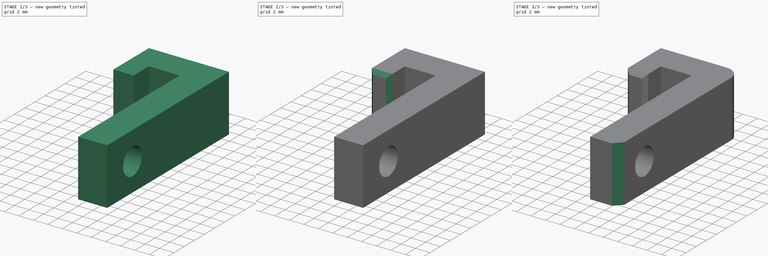
[diagram: build sequence overview — one tinted view per stage of 3, left to right]
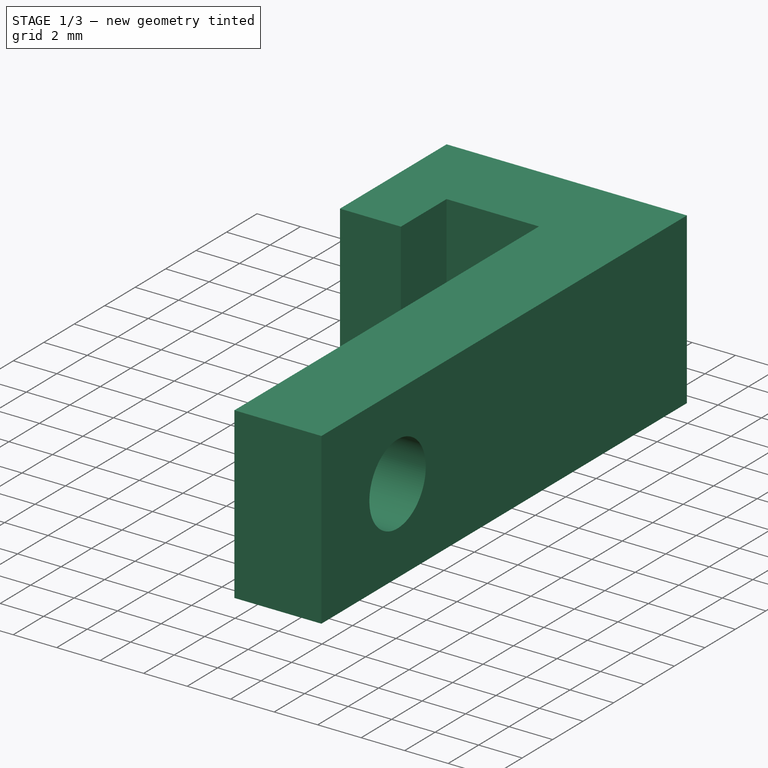
[diagram: stage 1 of 3 — iso view after this stage's code; geometry added in this stage tinted green]
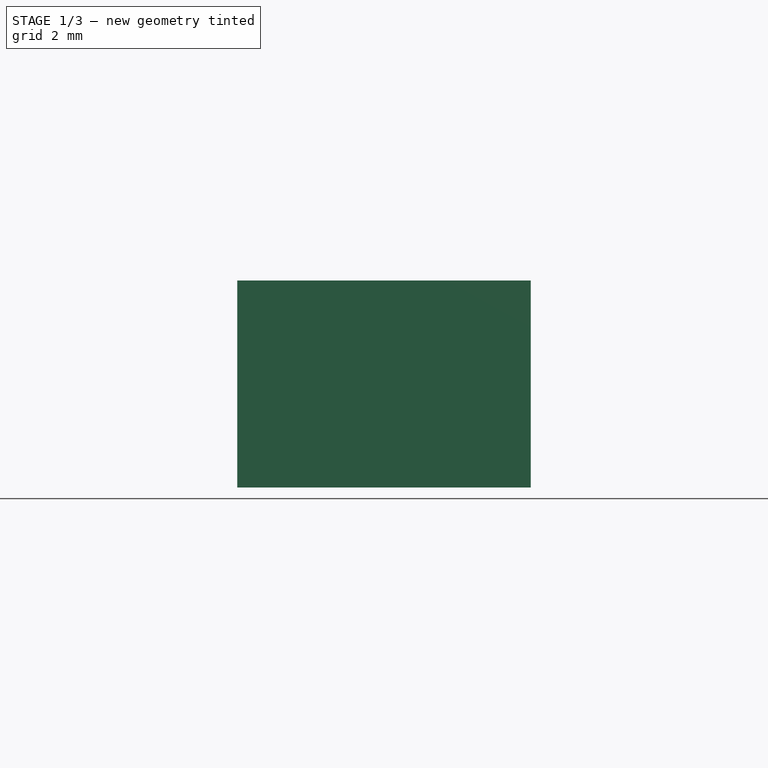
[diagram: stage 1 of 3 — front view after this stage's code; geometry added in this stage tinted green]
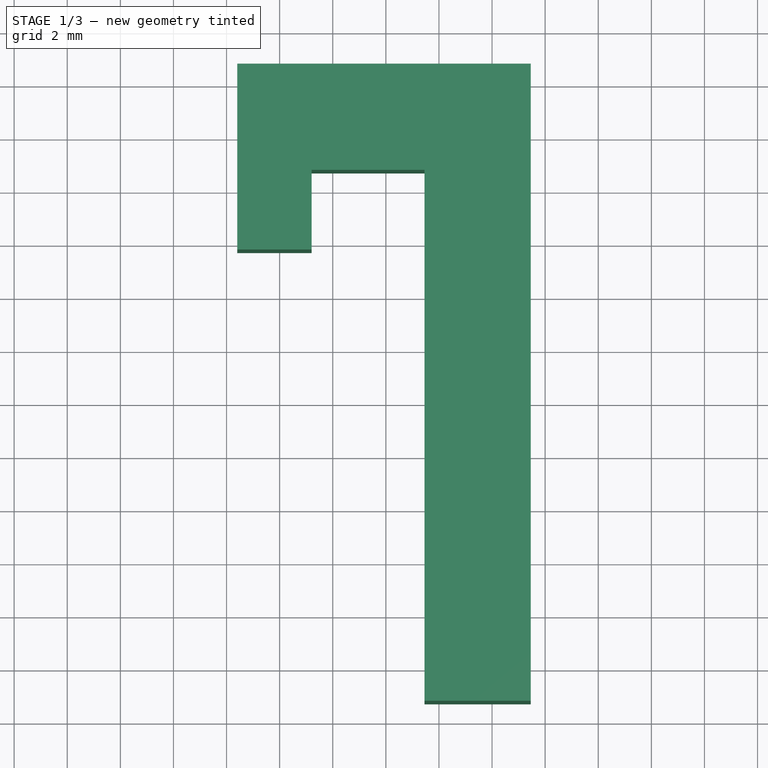
[diagram: stage 1 of 3 — top view after this stage's code; geometry added in this stage tinted green]
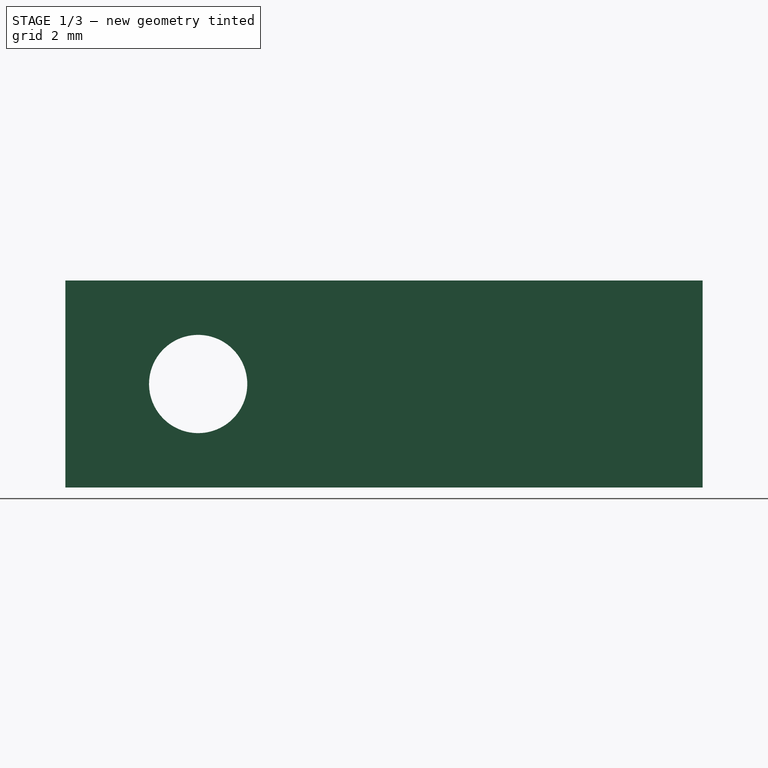
[diagram: stage 1 of 3 — right view after this stage's code; geometry added in this stage tinted green]
FCSTD DOCUMENT  (FreeCAD 0.19R19180 (Git))
Label: fan_holder_clip_mk1
License: All rights reserved
LicenseURL: http://en.wikipedia.org/wiki/All_rights_reserved
objects: Sketcher::SketchObject×2, PartDesign::Chamfer×2, PartDesign::Pad×1, PartDesign::Pocket×1, PartDesign::Fillet×1, PartDesign::Body×1
note: 10 computed .brp shape members not serialized (recipe doc carries the construction recipe); baked Part::Feature solids carry a one-line shape summary decoded from their .brp

FEATURE [Sketcher::SketchObject] Sketch
  MapMode = 5
  Support = -> [XY_Plane]
  sketch-geometry (8):
    g0: LineSegment StartX=-16.7945 StartY=-6.26403 StartZ=0 EndX=-19.5945 EndY=-6.26403 EndZ=0
    g1: LineSegment StartX=-19.5945 StartY=-6.26403 StartZ=0 EndX=-19.5945 EndY=0.735968 EndZ=0
    g2: LineSegment StartX=-19.5945 StartY=0.735968 StartZ=0 EndX=-8.54446 EndY=0.735968 EndZ=0
    g3: LineSegment StartX=-8.54446 StartY=0.735968 StartZ=0 EndX=-8.54446 EndY=-23.264 EndZ=0
    g4: LineSegment StartX=-8.54446 StartY=-23.264 StartZ=0 EndX=-12.5445 EndY=-23.264 EndZ=0
    g5: LineSegment StartX=-12.5445 StartY=-23.264 StartZ=0 EndX=-12.5445 EndY=-3.26403 EndZ=0
    g6: LineSegment StartX=-12.5445 StartY=-3.26403 StartZ=0 EndX=-16.7945 EndY=-3.26403 EndZ=0
    g7: LineSegment StartX=-16.7945 StartY=-3.26403 StartZ=0 EndX=-16.7945 EndY=-6.26403 EndZ=0
  constraints (22):
    c: Horizontal(g0)
    c: Coincident(g0,g1)
    c: Vertical(g1)
    c: Coincident(g1,g2)
    c: Horizontal(g2)
    c: Coincident(g2,g3)
    c: Vertical(g3)
    c: Coincident(g3,g4)
    c: Coincident(g4,g5)
    c: Vertical(g5)
    c: Coincident(g5,g6)
    c: Horizontal(g6)
    c: Coincident(g6,g7)
    c: Coincident(g7,g0)
    c: DistanceX(g0,g0) = 2.8
    c: Vertical(g7)
    c: DistanceY(g7,g7) = 3
    c: DistanceY(g1,g1) = 7
    c: DistanceX(g6,g6) = 4.25
    c: Horizontal(g4)
    c: DistanceX(g4,g4) = 4
    c: DistanceY(g5,g5) = 20
FEATURE [PartDesign::Pad] Pad
  Length = 7.8
  Length2 = 100
  Profile = -> Sketch
  Type = 0
FEATURE [Sketcher::SketchObject] Sketch001
  ExternalGeometry = -> [Pad]
  MapMode = 5
  Placement = pos=(-8.54446,0,0) rot=(0.57735,0.57735,0.57735;2.0944rad)
  Support = -> [Pad]
  sketch-geometry (1):
    g0: Circle CenterX=-18.264 CenterY=3.9 CenterZ=0 NormalX=0 NormalY=0 NormalZ=1 AngleXU=0 Radius=1.85
  constraints (3):
    c: DistanceY(g-1,g0) = 3.9
    c: DistanceX(g-3,g0) = 5
    c: Diameter(g0) = 3.7
FEATURE [PartDesign::Pocket] Pocket
  BaseFeature = -> Pad
  Length = 5
  Length2 = 100
  Profile = -> Sketch001
  Type = 0
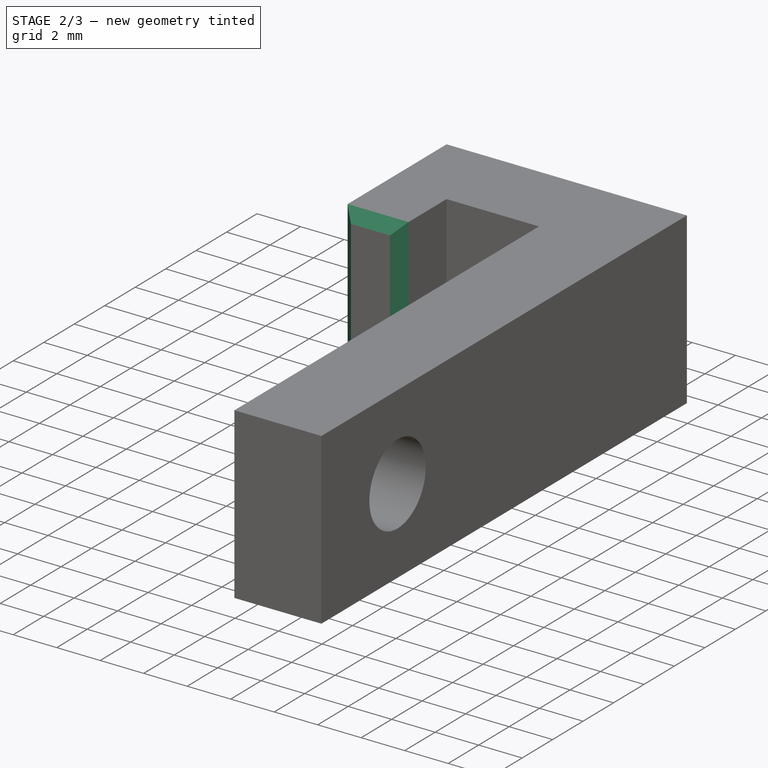
[diagram: stage 2 of 3 — iso view after this stage's code; geometry added in this stage tinted green]
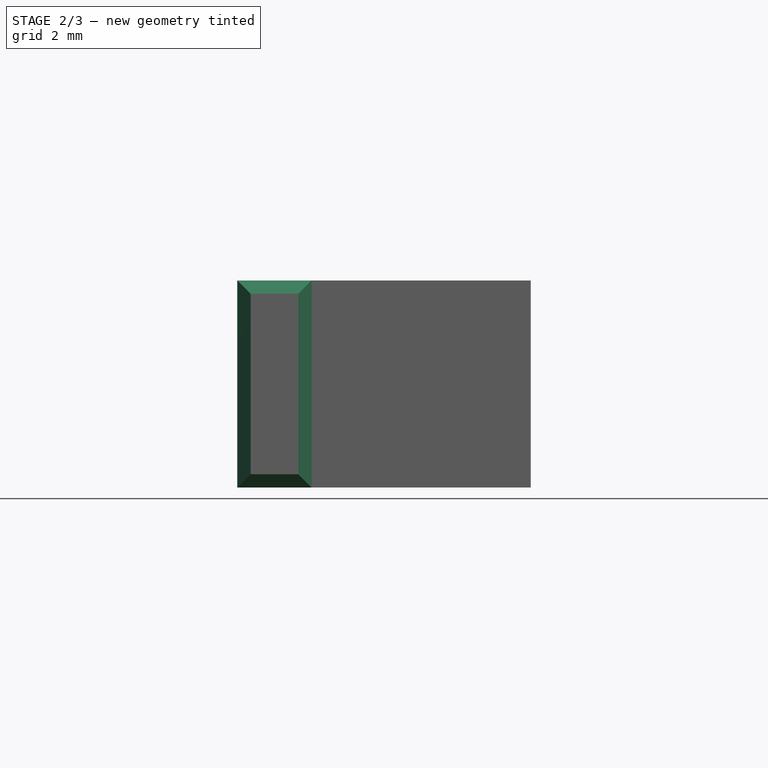
[diagram: stage 2 of 3 — front view after this stage's code; geometry added in this stage tinted green]
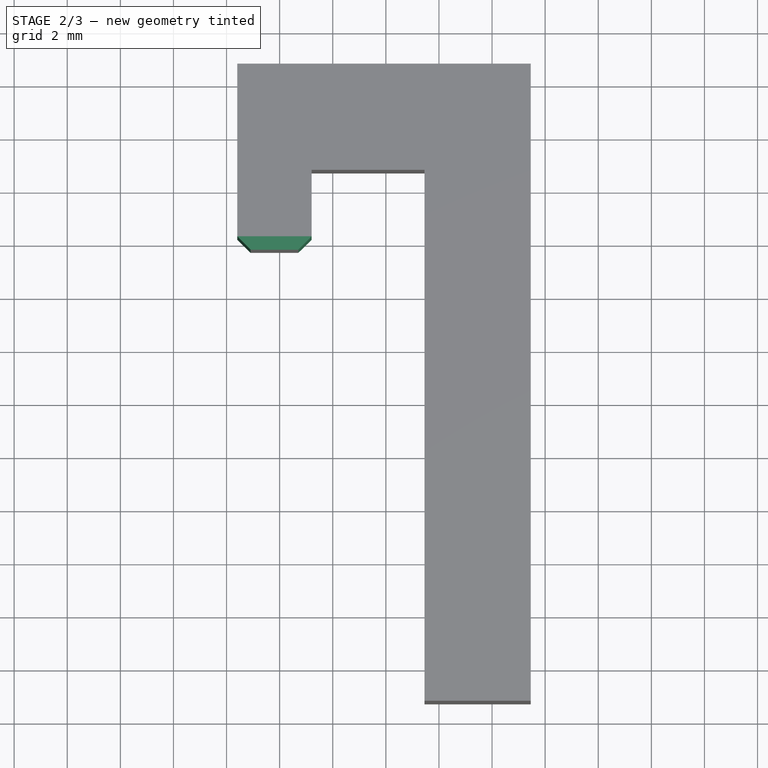
[diagram: stage 2 of 3 — top view after this stage's code; geometry added in this stage tinted green]
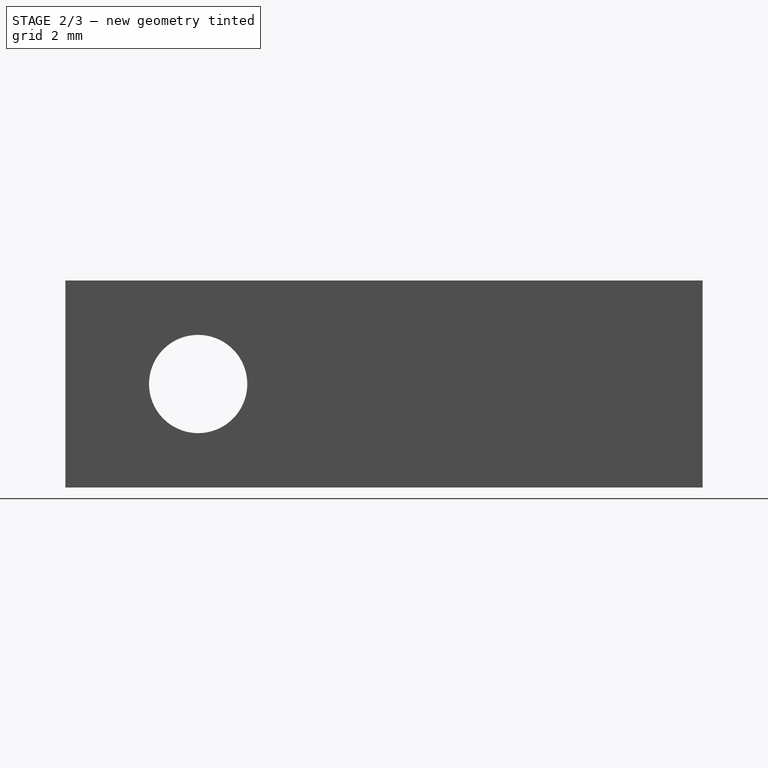
[diagram: stage 2 of 3 — right view after this stage's code; geometry added in this stage tinted green]
FEATURE [PartDesign::Chamfer] Chamfer
  Base = -> Pocket [Edge1,Edge3,Edge2,Edge4]
  BaseFeature = -> Pocket
  Size = 0.5
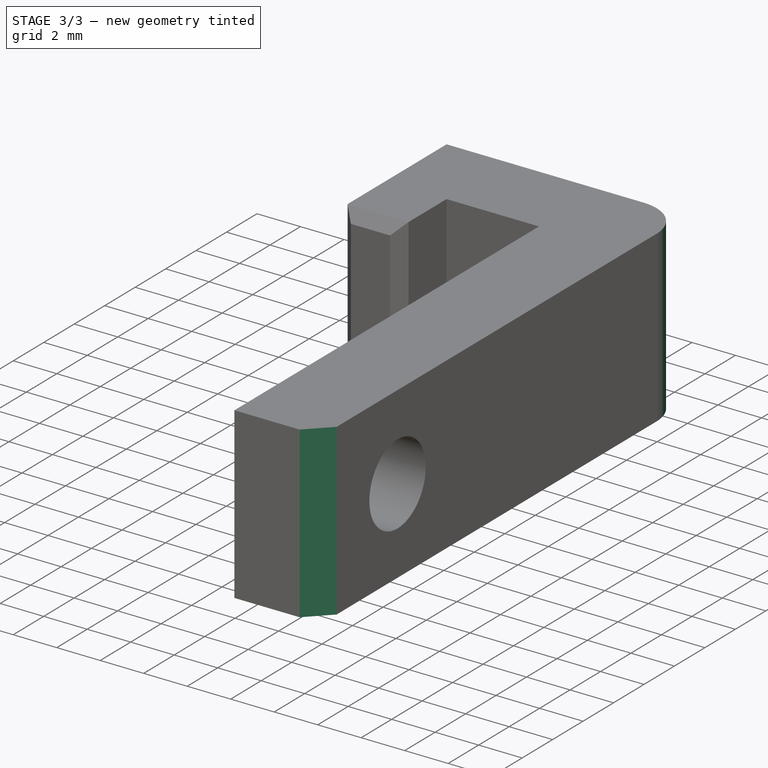
[diagram: stage 3 of 3 — iso view after this stage's code; geometry added in this stage tinted green]
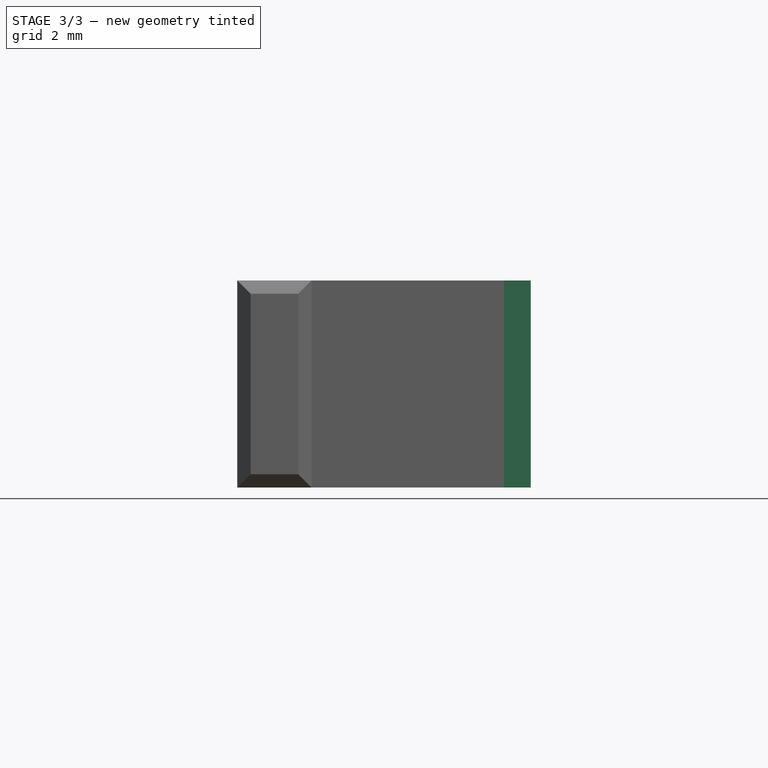
[diagram: stage 3 of 3 — front view after this stage's code; geometry added in this stage tinted green]
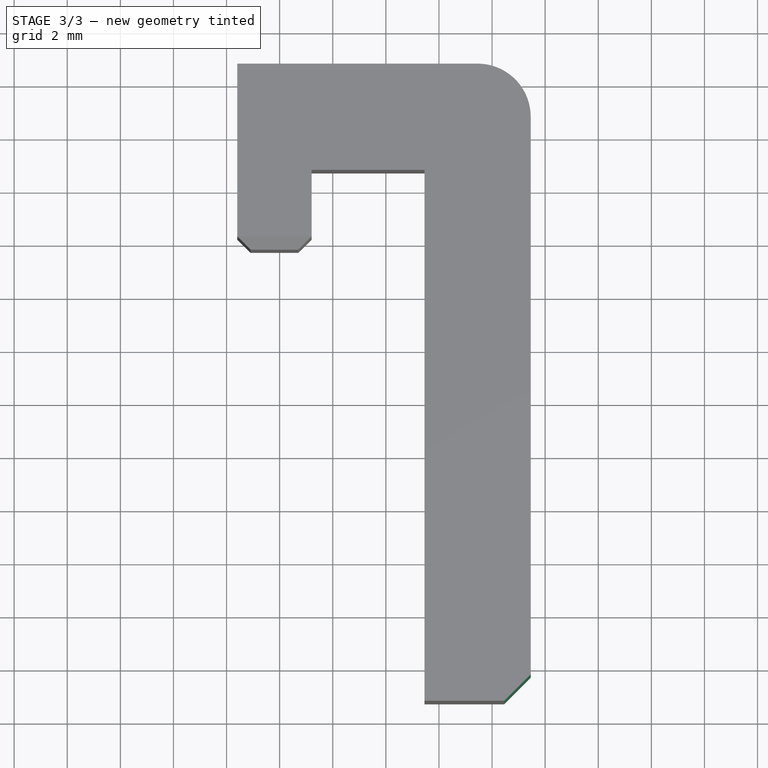
[diagram: stage 3 of 3 — top view after this stage's code; geometry added in this stage tinted green]
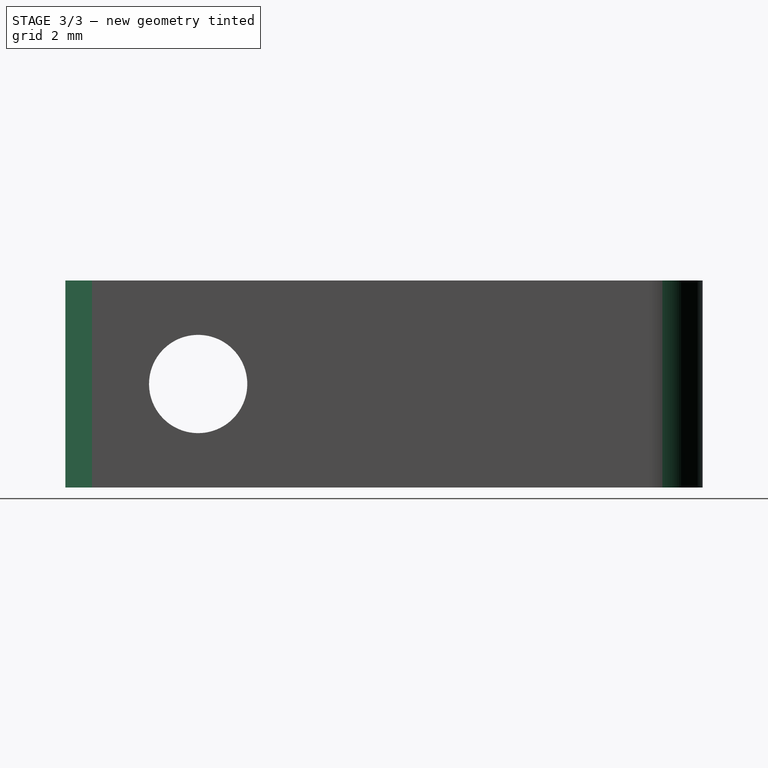
[diagram: stage 3 of 3 — right view after this stage's code; geometry added in this stage tinted green]
FEATURE [PartDesign::Chamfer] Chamfer001
  Base = -> Chamfer [Edge31]
  BaseFeature = -> Chamfer
  Size = 1
FEATURE [PartDesign::Fillet] Fillet
  Base = -> Chamfer001 [Edge11]
  BaseFeature = -> Chamfer001
  Radius = 2
FEATURE [PartDesign::Body] Body
  Group = -> [Sketch,Pad,Sketch001,Pocket,Chamfer,Chamfer001,Fillet]
  Origin = -> Origin
  Tip = -> Fillet
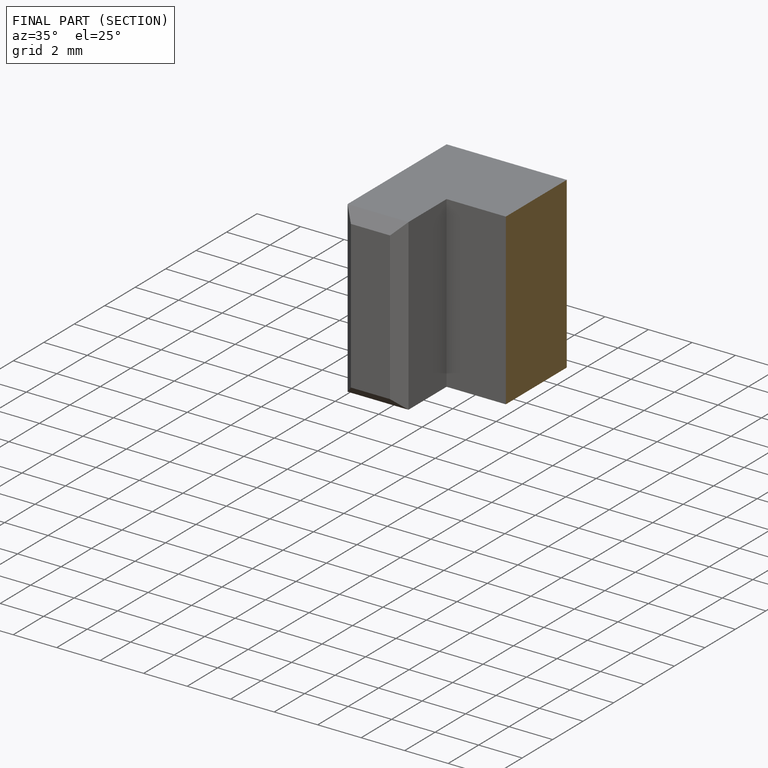
[diagram: finished part — half-section view (interior)]
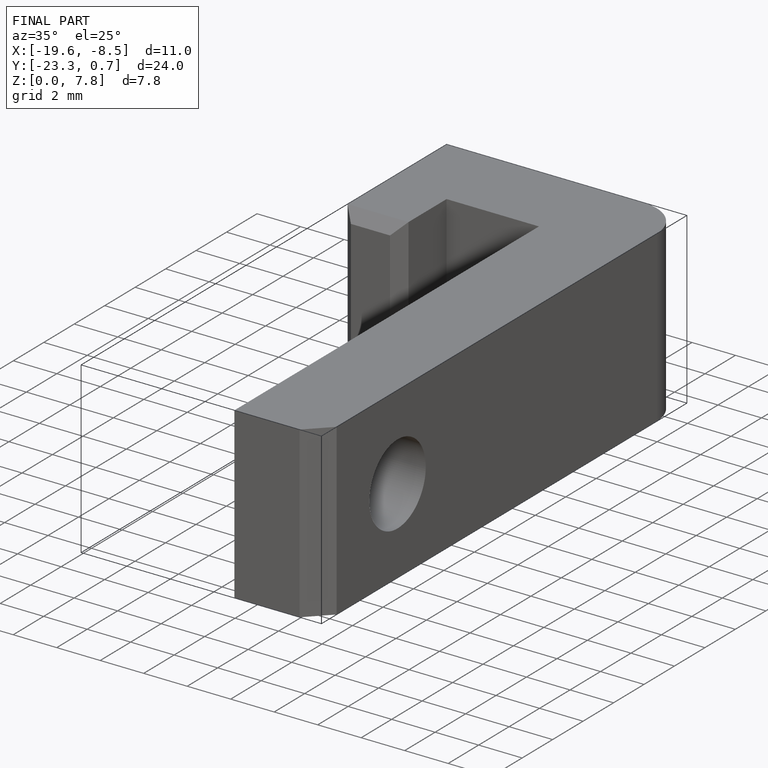
[diagram: finished part — iso view with bounding-box wireframe]
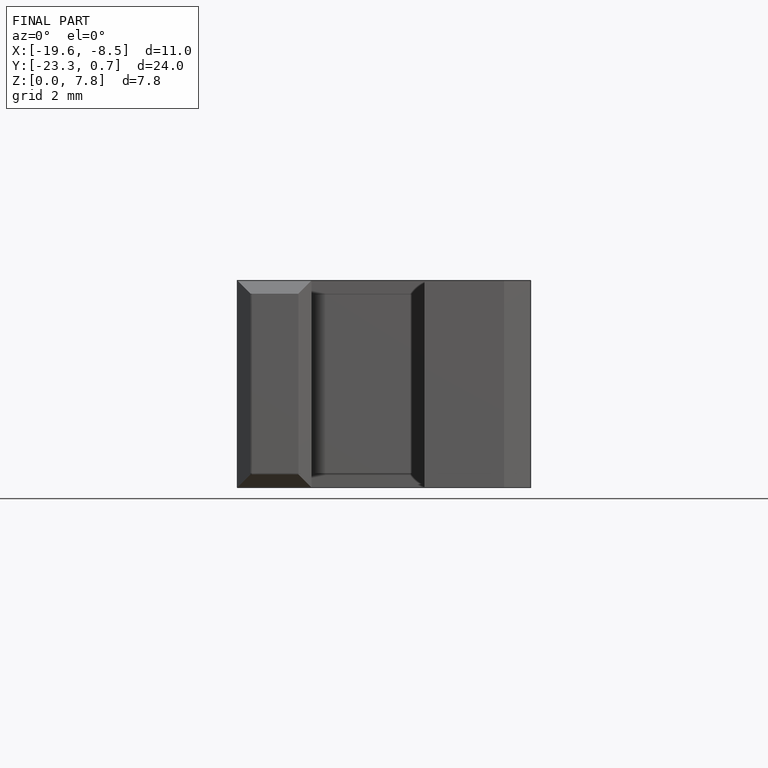
[diagram: finished part — front view with bounding-box wireframe]
